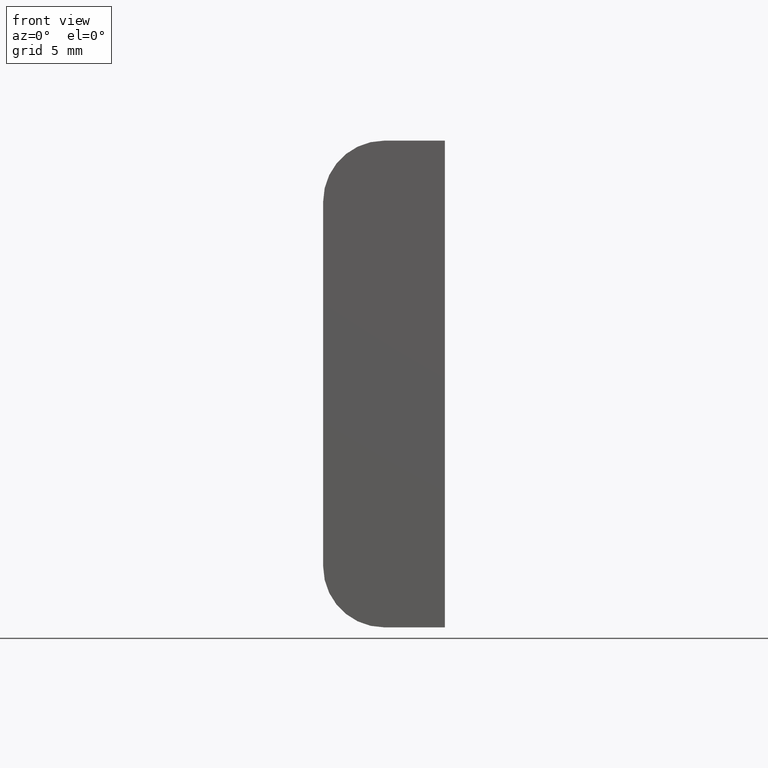
[diagram: clean part render]
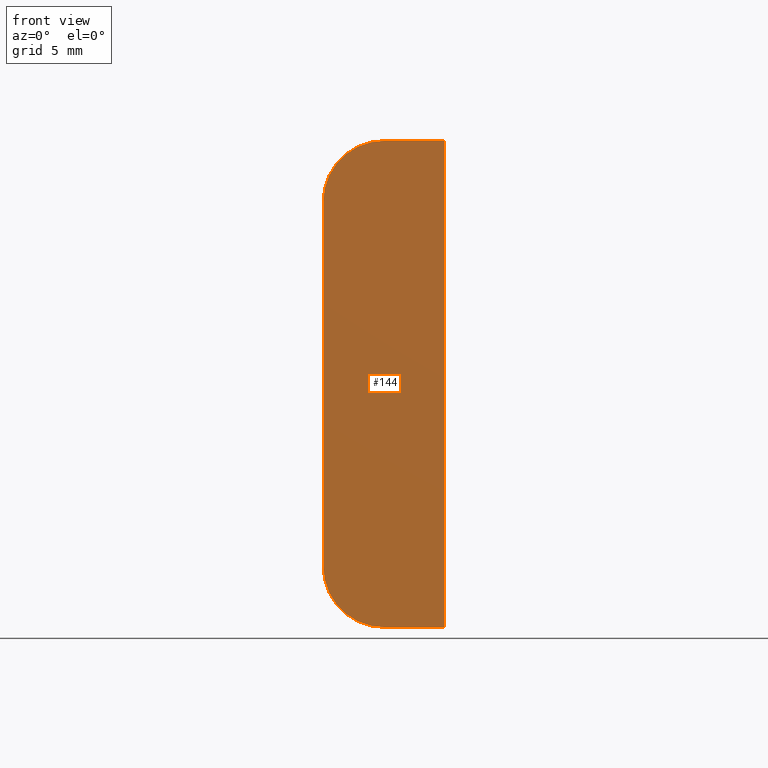
[diagram: same view with one face highlighted and labeled with its STEP entity id]
A machine part, front view. The second image highlights one B-rep face of the part: STEP entity #144.
In plain terms, the highlighted planar face has unit normal (0, 1, 0).
Its self-contained STEP definition (entity closure, byte-faithful):
#15=CIRCLE('',#170,4.);
#17=CIRCLE('',#174,4.);
#28=FACE_OUTER_BOUND('',#36,.T.);
#36=EDGE_LOOP('',(#125,#126,#127,#128,#129,#130));
#37=LINE('',#224,#51);
#42=LINE('',#238,#56);
#46=LINE('',#250,#60);
#49=LINE('',#255,#63);
#51=VECTOR('',#184,10.);
#56=VECTOR('',#197,10.);
#60=VECTOR('',#209,10.);
#63=VECTOR('',#214,10.);
#65=VERTEX_POINT('',#222);
#66=VERTEX_POINT('',#223);
#69=VERTEX_POINT('',#231);
#71=VERTEX_POINT('',#237);
#73=VERTEX_POINT('',#243);
#75=VERTEX_POINT('',#249);
#77=EDGE_CURVE('',#65,#66,#37,.T.);
#81=EDGE_CURVE('',#69,#65,#15,.T.);
#84=EDGE_CURVE('',#71,#69,#42,.T.);
#87=EDGE_CURVE('',#73,#71,#17,.T.);
#90=EDGE_CURVE('',#75,#73,#46,.T.);
#93=EDGE_CURVE('',#66,#75,#49,.T.);
#125=ORIENTED_EDGE('',*,*,#93,.F.);
#126=ORIENTED_EDGE('',*,*,#77,.F.);
#127=ORIENTED_EDGE('',*,*,#81,.F.);
#128=ORIENTED_EDGE('',*,*,#84,.F.);
#129=ORIENTED_EDGE('',*,*,#87,.F.);
#130=ORIENTED_EDGE('',*,*,#90,.F.);
#136=PLANE('',#179);
#144=ADVANCED_FACE('',(#28),#136,.F.);
#170=AXIS2_PLACEMENT_3D('',#232,#190,#191);
#174=AXIS2_PLACEMENT_3D('',#244,#202,#203);
#179=AXIS2_PLACEMENT_3D('',#258,#218,#219);
#184=DIRECTION('',(1.,0.,0.));
#190=DIRECTION('center_axis',(0.,1.,0.));
#191=DIRECTION('ref_axis',(-1.,0.,0.));
#197=DIRECTION('',(0.,0.,1.));
#202=DIRECTION('center_axis',(0.,1.,0.));
#203=DIRECTION('ref_axis',(0.,0.,-1.));
#209=DIRECTION('',(-1.,0.,0.));
#214=DIRECTION('',(0.,0.,-1.));
#218=DIRECTION('center_axis',(0.,1.,0.));
#219=DIRECTION('ref_axis',(0.,0.,1.));
#222=CARTESIAN_POINT('',(-4.,0.,16.));
#223=CARTESIAN_POINT('',(0.,0.,16.));
#224=CARTESIAN_POINT('',(-4.,0.,16.));
#231=CARTESIAN_POINT('',(-8.,0.,12.));
#232=CARTESIAN_POINT('Origin',(-4.,0.,12.));
#237=CARTESIAN_POINT('',(-8.,0.,-12.));
#238=CARTESIAN_POINT('',(-8.,0.,-12.));
#243=CARTESIAN_POINT('',(-4.,0.,-16.));
#244=CARTESIAN_POINT('Origin',(-4.,0.,-12.));
#249=CARTESIAN_POINT('',(0.,0.,-16.));
#250=CARTESIAN_POINT('',(0.,0.,-16.));
#255=CARTESIAN_POINT('',(0.,0.,16.));
#258=CARTESIAN_POINT('Origin',(-4.,0.,0.));